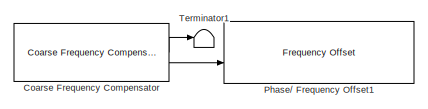
[diagram: root canvas - part 1/3, top left region]
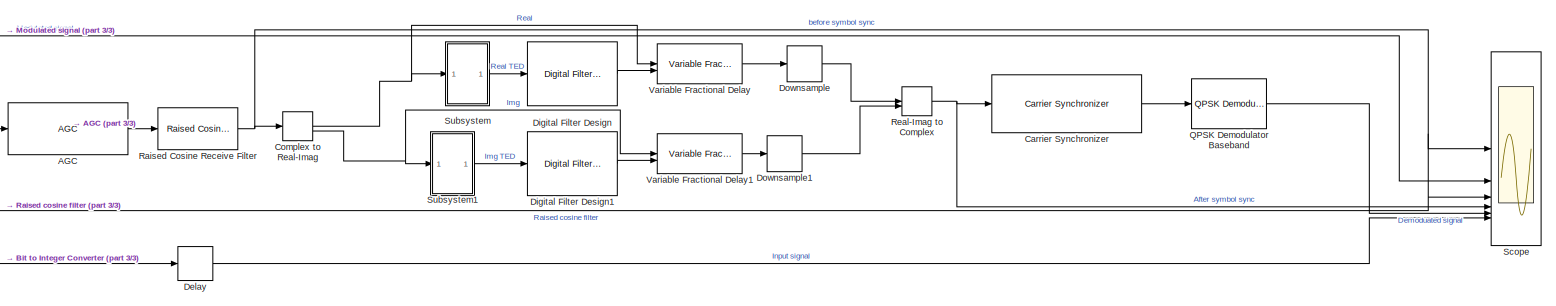
[diagram: root canvas - part 2/3, bottom right region]
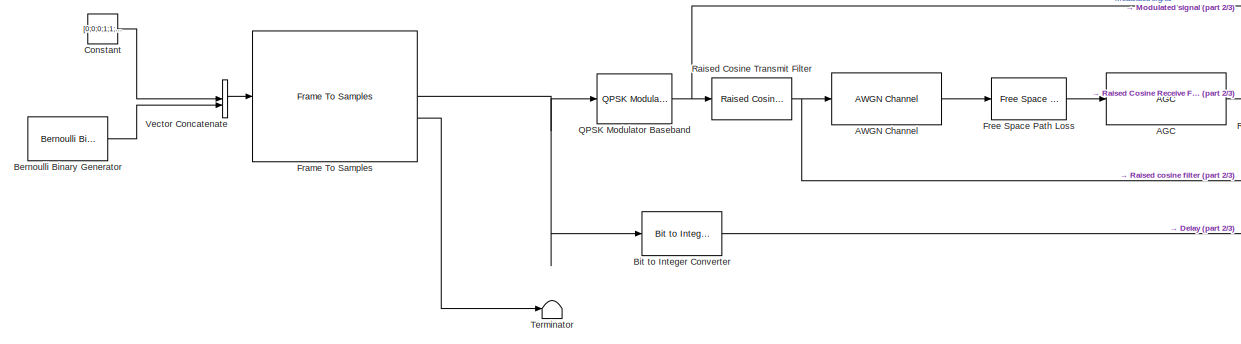
[diagram: root canvas - part 3/3, bottom left region]
MODEL slx_c7908ff62c79
KIND model
CONFIG AbsTol = auto
CONFIG EnableMultiTasking = off
CONFIG FixedStep = auto
CONFIG MaxStep = auto
CONFIG MinStep = auto
CONFIG RelTol = 1e-3
CONFIG SampleTimeConstraint = Unconstrained
CONFIG SolverName = VariableStepAuto
CONFIG StartTime = 0.0
CONFIG StopTime = 0.0001
BLOCK [Reference] AGC  REF=commrfcorlib/AGC
  SourceBlock = commrfcorlib/AGC
  SourceType = AGC
BLOCK [Reference] AWGN Channel  REF=commchan3/AWGN
Channel
  SourceBlock = commchan3/AWGN\nChannel
  SourceType = AWGN Channel
BLOCK [Reference] Bernoulli Binary Generator  REF=commrandsrc3/Bernoulli Binary
Generator
  SourceBlock = commrandsrc3/Bernoulli Binary\nGenerator
  SourceType = Bernoulli Binary Generator
BLOCK [Reference] Bit to Integer Converter  REF=simulink/Logic and Bit
Operations/Bit to Integer
Converter
  SourceBlock = simulink/Logic and Bit\nOperations/Bit to Integer\nConverter
  SourceType = Bit to Integer Converter
BLOCK [Reference] Carrier Synchronizer  REF=commsync2/Carrier Synchronizer
  SourceBlock = commsync2/Carrier Synchronizer
  SourceType = Carrier Synchronizer
BLOCK [Reference] Coarse Frequency Compensator  REF=commrfcorlib/Coarse Frequency
Compensator
  Commented = on
  LibrarySourceBlock = commsync2/Coarse Frequency\nCompensator
  SourceBlock = commrfcorlib/Coarse Frequency\nCompensator
  SourceType = Coarse Frequency Compensator
BLOCK [ComplexToRealImag] Complex to Real-Imag
BLOCK [Constant] Constant
  OutDataTypeStr = double
  SampleTime = 128/10e6
  Value = [0;0;0;1;1;0;1;0;1;1;0;0;1;1;1;1;1;1;1;1;1;1;0;0;0;0;0;1;1;1;0;1]
BLOCK [Delay] Delay
  DelayLength = 10
  InitialCondition = 0
  InputPortMap = u0
BLOCK [Reference] Digital Filter Design  REF=dspfdesign/Digital
Filter Design
  SourceBlock = dspfdesign/Digital\nFilter Design
  SourceType = Digital Filter Design
  UserDataPersistent = on
BLOCK [Reference] Digital Filter Design1  REF=dspfdesign/Digital
Filter Design
  SourceBlock = dspfdesign/Digital\nFilter Design
  SourceType = Digital Filter Design
  UserDataPersistent = on
BLOCK [DownSample] Downsample
  AllowArbitraryFixedInput = on
  InputProcessing = Elements as channels (sample based)
BLOCK [DownSample] Downsample1
  AllowArbitraryFixedInput = on
  InputProcessing = Elements as channels (sample based)
BLOCK [Reference] Frame To Samples  REF=whdlio/Frame To Samples
  SourceBlock = whdlio/Frame To Samples
  SourceType = Frame To Samples
BLOCK [Reference] Free Space Path Loss  REF=commrflib2/Free Space
Path Loss
  SourceBlock = commrflib2/Free Space\nPath Loss
  SourceType = Free Space Path Loss
BLOCK [Reference] Phase// Frequency Offset1  REF=commrflib2/Phase//
Frequency
Offset
  Commented = on
  LibrarySourceBlock = commrfcorlib/Phase//\nFrequency\nOffset
  SourceBlock = commrflib2/Phase//\nFrequency\nOffset
  SourceType = Phase/Frequency Offset
BLOCK [Reference] QPSK Demodulator Baseband  REF=commdigbbndpm3/QPSK
Demodulator
Baseband
  SourceBlock = commdigbbndpm3/QPSK\nDemodulator\nBaseband
  SourceType = QPSK Demodulator Baseband
BLOCK [Reference] QPSK Modulator Baseband  REF=commdigbbndpm3/QPSK
Modulator
Baseband
  SourceBlock = commdigbbndpm3/QPSK\nModulator\nBaseband
  SourceType = QPSK Modulator Baseband
BLOCK [Reference] Raised Cosine Receive Filter  REF=commfilt2/Raised Cosine
Receive Filter
  SourceBlock = commfilt2/Raised Cosine\nReceive Filter
  SourceType = Raised Cosine Receive Filter
BLOCK [Reference] Raised Cosine Transmit Filter  REF=commfilt2/Raised Cosine
Transmit Filter
  SourceBlock = commfilt2/Raised Cosine\nTransmit Filter
  SourceType = Raised Cosine Transmit Filter
BLOCK [RealImagToComplex] Real-Imag to Complex
BLOCK [Scope] Scope
  Floating = off
  NumInputPorts = 6
  ScopeSpecificationString = Simulink.scopes.TimeScopeBlockCfg('CurrentConfiguration', extmgr.ConfigurationSet(extmgr.Configuration('Core','General UI',true),extmgr.Configuration('Core','Source UI',true),extmgr.Configuration('Sources','WiredSimulink',true),extmgr.Configuration('Visuals','Time Domain',true,'SerializedDisplays',{struct('MinYLimReal','-0.00225','MaxYLimReal','0.00233','YLabelReal','','MinYLimMag','0.00000','MaxY...<+5574ch>
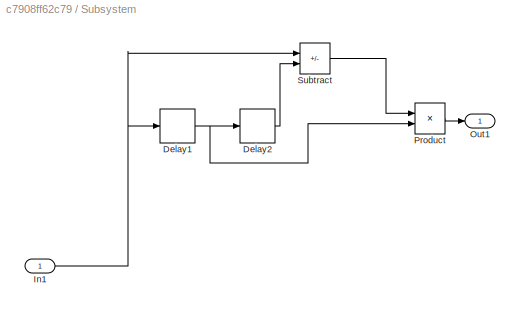
BLOCK [SubSystem] Subsystem
BLOCK [Delay] Subsystem/Delay1
  DelayLength = 1
  InitialCondition = 0
  InputPortMap = u0
BLOCK [Delay] Subsystem/Delay2
  DelayLength = 1
  InitialCondition = 0
  InputPortMap = u0
BLOCK [Inport] Subsystem/In1
BLOCK [Outport] Subsystem/Out1
BLOCK [Product] Subsystem/Product
BLOCK [Sum] Subsystem/Subtract
  IconShape = rectangular
  Inputs = +-
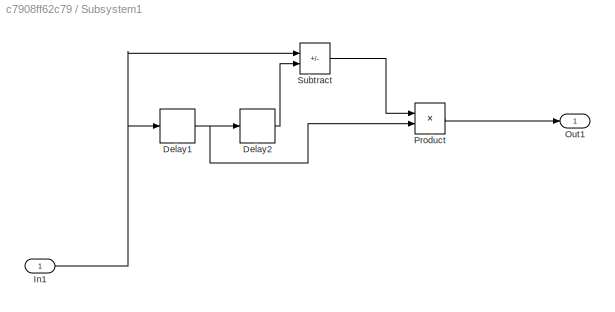
BLOCK [SubSystem] Subsystem1
BLOCK [Delay] Subsystem1/Delay1
  DelayLength = 1
  InitialCondition = 0
  InputPortMap = u0
BLOCK [Delay] Subsystem1/Delay2
  DelayLength = 1
  InitialCondition = 0
  InputPortMap = u0
BLOCK [Inport] Subsystem1/In1
BLOCK [Outport] Subsystem1/Out1
BLOCK [Product] Subsystem1/Product
BLOCK [Sum] Subsystem1/Subtract
  IconShape = rectangular
  Inputs = +-
BLOCK [Terminator] Terminator
BLOCK [Terminator] Terminator1
  Commented = on
BLOCK [Reference] Variable Fractional Delay  REF=dspsigops/Variable
Fractional Delay
  SourceBlock = dspsigops/Variable\nFractional Delay
  SourceType = Variable Fractional Delay
  UserDataPersistent = on
BLOCK [Reference] Variable Fractional Delay1  REF=dspsigops/Variable
Fractional Delay
  SourceBlock = dspsigops/Variable\nFractional Delay
  SourceType = Variable Fractional Delay
  UserDataPersistent = on
BLOCK [Concatenate] Vector Concatenate
LINE AGC:1 -> Raised Cosine Receive Filter:1
LINE AWGN Channel:1 -> Free Space Path Loss:1
LINE Bernoulli Binary Generator:1 -> Vector Concatenate:2
LINE Bit to Integer Converter:1 -> Delay:1
LINE Carrier Synchronizer:1 -> QPSK Demodulator Baseband:1
LINE Coarse Frequency Compensator:1 -> Terminator1:1
LINE Coarse Frequency Compensator:2 -> Phase// Frequency Offset1:2
NET Complex to Real-Imag:1 -> Subsystem:1, Variable Fractional Delay:1
NET Complex to Real-Imag:2 -> Subsystem1:1, Variable Fractional Delay1:1
LINE Constant:1 -> Vector Concatenate:1
LINE Delay:1 -> Scope:6
LINE Digital Filter Design1:1 -> Variable Fractional Delay1:2
LINE Digital Filter Design:1 -> Variable Fractional Delay:2
LINE Downsample1:1 -> Real-Imag to Complex:2
LINE Downsample:1 -> Real-Imag to Complex:1
NET Frame To Samples:1 -> Bit to Integer Converter:1, QPSK Modulator Baseband:1
LINE Frame To Samples:2 -> Terminator:1
LINE Free Space Path Loss:1 -> AGC:1
LINE QPSK Demodulator Baseband:1 -> Scope:5
NET QPSK Modulator Baseband:1 -> Raised Cosine Transmit Filter:1, Scope:2
NET Raised Cosine Receive Filter:1 -> Complex to Real-Imag:1, Scope:1
NET Raised Cosine Transmit Filter:1 -> AWGN Channel:1, Scope:3
NET Real-Imag to Complex:1 -> Carrier Synchronizer:1, Scope:4
NET Subsystem/Delay1:1 -> Subsystem/Delay2:1, Subsystem/Product:2
LINE Subsystem/Delay2:1 -> Subsystem/Subtract:2
NET Subsystem/In1:1 -> Subsystem/Delay1:1, Subsystem/Subtract:1
LINE Subsystem/Product:1 -> Subsystem/Out1:1
LINE Subsystem/Subtract:1 -> Subsystem/Product:1
NET Subsystem1/Delay1:1 -> Subsystem1/Delay2:1, Subsystem1/Product:2
LINE Subsystem1/Delay2:1 -> Subsystem1/Subtract:2
NET Subsystem1/In1:1 -> Subsystem1/Delay1:1, Subsystem1/Subtract:1
LINE Subsystem1/Product:1 -> Subsystem1/Out1:1
LINE Subsystem1/Subtract:1 -> Subsystem1/Product:1
LINE Subsystem1:1 -> Digital Filter Design1:1
LINE Subsystem:1 -> Digital Filter Design:1
LINE Variable Fractional Delay1:1 -> Downsample1:1
LINE Variable Fractional Delay:1 -> Downsample:1
LINE Vector Concatenate:1 -> Frame To Samples:1
note: NET lines group one-source signal fan-out (src -> all destinations, sorted); 1:1 wires keep LINE
